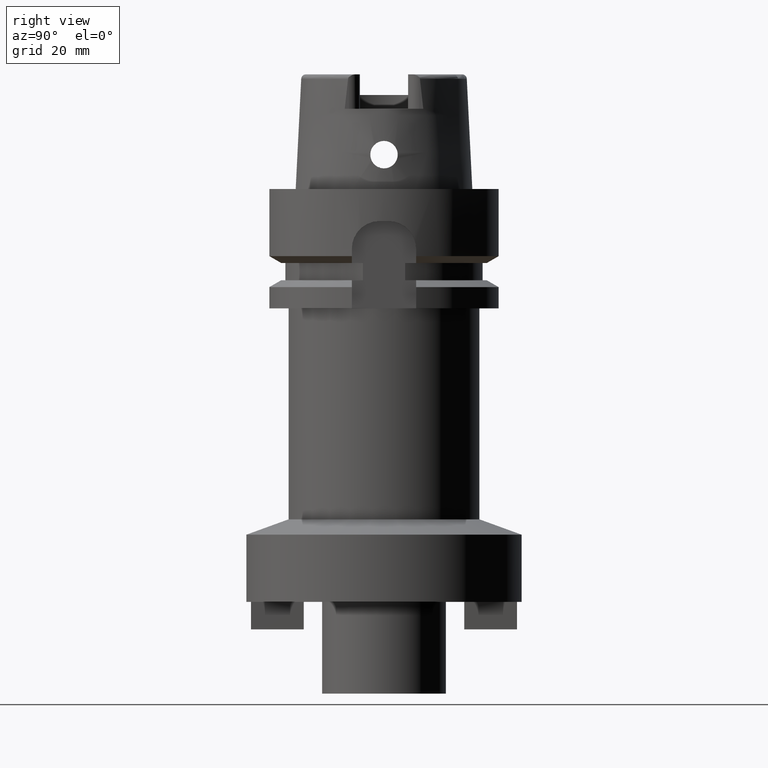
[diagram: clean part render]
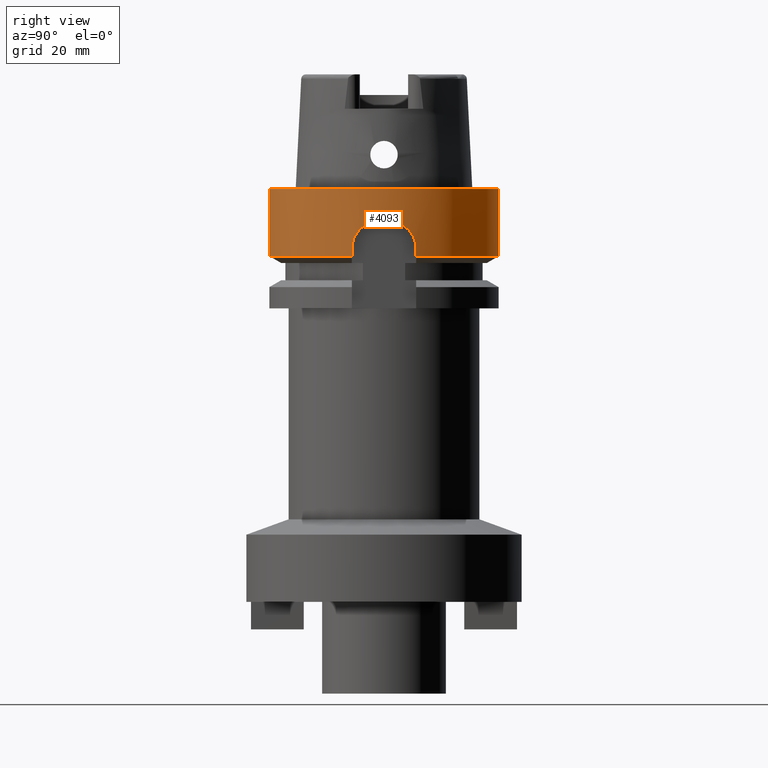
[diagram: same view with one face highlighted and labeled with its STEP entity id]
A machine part, right view. The second image highlights one B-rep face of the part: STEP entity #4093.
In plain terms, the highlighted cylindrical surface (partial cylindrical patch) has radius 25 mm, axis along (0, 0, 1).
Its self-contained STEP definition (entity closure, byte-faithful):
#1716=CARTESIAN_POINT('',(2.399999968318E1,7.000001086231E0,-1.462249198985E1));
#1721=CARTESIAN_POINT('',(0.E0,0.E0,-1.462250092524E1));
#1722=DIRECTION('',(0.E0,0.E0,1.E0));
#1723=DIRECTION('',(9.6E-1,2.8E-1,0.E0));
#1724=AXIS2_PLACEMENT_3D('',#1721,#1722,#1723);
#1751=CARTESIAN_POINT('',(2.497999199359E1,-1.E0,-7.E0));
#1752=CARTESIAN_POINT('',(2.496218688693E1,-1.444771421805E0,-7.E0));
#1753=CARTESIAN_POINT('',(2.490399631038E1,-2.316913423191E0,
-7.095569607612E0));
#1754=CARTESIAN_POINT('',(2.474857994367E1,-3.610001032791E0,
-7.539949387154E0));
#1755=CARTESIAN_POINT('',(2.454978917241E1,-4.764235887453E0,
-8.262433584043E0));
#1756=CARTESIAN_POINT('',(2.434030863360E1,-5.727275277232E0,
-9.223452138812E0));
#1757=CARTESIAN_POINT('',(2.415563644772E1,-6.451885219719E0,
-1.037215742016E1));
#1758=CARTESIAN_POINT('',(2.402849788507E1,-6.903546913145E0,
-1.167534256863E1));
#1759=CARTESIAN_POINT('',(2.4E1,-7.E0,-1.255186660542E1));
#1760=CARTESIAN_POINT('',(2.4E1,-7.E0,-1.3E1));
#1765=DIRECTION('',(3.905213642416E-8,1.338921764463E-7,-1.E0));
#1766=VECTOR('',#1765,1.622502712235E0);
#1767=CARTESIAN_POINT('',(2.4E1,-7.E0,-1.3E1));
#1768=LINE('',#1767,#1766);
#1772=DIRECTION('',(0.E0,2.721175632404E-14,-1.E0));
#1773=VECTOR('',#1772,1.462250092524E1);
#1774=CARTESIAN_POINT('',(0.E0,2.5E1,0.E0));
#1775=LINE('',#1774,#1773);
#1779=DIRECTION('',(1.952656226905E-7,-6.694828396199E-7,9.999999999998E-1));
#1780=VECTOR('',#1779,1.622491989846E0);
#1781=CARTESIAN_POINT('',(2.399999968318E1,7.000001086231E0,-1.462249198985E1));
#1782=LINE('',#1781,#1780);
#1786=CARTESIAN_POINT('',(2.4E1,7.E0,-1.3E1));
#1787=CARTESIAN_POINT('',(2.4E1,7.E0,-1.255860797765E1));
#1788=CARTESIAN_POINT('',(2.402767624049E1,6.906288431368E0,-1.169349859800E1));
#1789=CARTESIAN_POINT('',(2.415178540201E1,6.465884528113E0,-1.040363672789E1));
#1790=CARTESIAN_POINT('',(2.433397387889E1,5.753535525163E0,-9.257229626059E0));
#1791=CARTESIAN_POINT('',(2.454264058198E1,4.800364307475E0,-8.291437927154E0));
#1792=CARTESIAN_POINT('',(2.474300290979E1,3.648542412875E0,-7.557730015792E0));
#1793=CARTESIAN_POINT('',(2.490181451194E1,2.343736498135E0,-7.100079258298E0));
#1794=CARTESIAN_POINT('',(2.496176981994E1,1.455189752057E0,-7.E0));
#1795=CARTESIAN_POINT('',(2.497999199359E1,1.E0,-7.E0));
#1814=CARTESIAN_POINT('',(0.E0,0.E0,-7.E0));
#1815=DIRECTION('',(0.E0,0.E0,1.E0));
#1816=DIRECTION('',(9.991996797437E-1,-4.E-2,0.E0));
#1817=AXIS2_PLACEMENT_3D('',#1814,#1815,#1816);
#1917=DIRECTION('',(0.E0,-2.721175632404E-14,-1.E0));
#1918=VECTOR('',#1917,1.462250092524E1);
#1919=CARTESIAN_POINT('',(0.E0,-2.5E1,0.E0));
#1920=LINE('',#1919,#1918);
#1972=CARTESIAN_POINT('',(0.E0,0.E0,0.E0));
#1973=DIRECTION('',(0.E0,0.E0,-1.E0));
#1974=DIRECTION('',(0.E0,1.E0,0.E0));
#1975=AXIS2_PLACEMENT_3D('',#1972,#1973,#1974);
#2014=CARTESIAN_POINT('',(0.E0,0.E0,-1.462250092524E1));
#2015=DIRECTION('',(0.E0,0.E0,1.E0));
#2016=DIRECTION('',(0.E0,-1.E0,0.E0));
#2017=AXIS2_PLACEMENT_3D('',#2014,#2015,#2016);
#2022=CARTESIAN_POINT('',(2.400000006336E1,-6.999999782760E0,
-1.462250271223E1));
#2751=VERTEX_POINT('',#2022);
#2752=CARTESIAN_POINT('',(2.4E1,-7.E0,-1.3E1));
#2753=VERTEX_POINT('',#2752);
#2762=CARTESIAN_POINT('',(0.E0,-2.5E1,-1.462250092524E1));
#2763=VERTEX_POINT('',#2762);
#2764=VERTEX_POINT('',#1716);
#2765=CARTESIAN_POINT('',(0.E0,2.5E1,-1.462250092524E1));
#2766=VERTEX_POINT('',#2765);
#2768=CARTESIAN_POINT('',(0.E0,2.5E1,0.E0));
#2769=VERTEX_POINT('',#2768);
#2770=CARTESIAN_POINT('',(0.E0,-2.5E1,0.E0));
#2771=VERTEX_POINT('',#2770);
#2774=VERTEX_POINT('',#1751);
#2775=CARTESIAN_POINT('',(2.4E1,7.E0,-1.3E1));
#2776=VERTEX_POINT('',#2775);
#2777=VERTEX_POINT('',#1795);
#4069=CARTESIAN_POINT('',(0.E0,0.E0,-1.1675E2));
#4070=DIRECTION('',(0.E0,0.E0,1.E0));
#4071=DIRECTION('',(0.E0,1.E0,0.E0));
#4072=AXIS2_PLACEMENT_3D('',#4069,#4070,#4071);
#4073=CYLINDRICAL_SURFACE('',#4072,2.5E1);
#4075=ORIENTED_EDGE('',*,*,#4074,.T.);
#4077=ORIENTED_EDGE('',*,*,#4076,.T.);
#4079=ORIENTED_EDGE('',*,*,#4078,.F.);
#4081=ORIENTED_EDGE('',*,*,#4080,.F.);
#4083=ORIENTED_EDGE('',*,*,#4082,.F.);
#4085=ORIENTED_EDGE('',*,*,#4084,.T.);
#4086=ORIENTED_EDGE('',*,*,#4033,.F.);
#4087=ORIENTED_EDGE('',*,*,#4049,.T.);
#4088=ORIENTED_EDGE('',*,*,#4060,.T.);
#4090=ORIENTED_EDGE('',*,*,#4089,.F.);
#4091=EDGE_LOOP('',(#4075,#4077,#4079,#4081,#4083,#4085,#4086,#4087,#4088,
#4090));
#4092=FACE_OUTER_BOUND('',#4091,.F.);
#1725=CIRCLE('',#1724,2.5E1);
#1761=B_SPLINE_CURVE_WITH_KNOTS('',3,(#1751,#1752,#1753,#1754,#1755,#1756,#1757,
#1758,#1759,#1760),.UNSPECIFIED.,.F.,.F.,(4,1,1,1,1,1,1,4),(0.E0,
1.428571428571E-1,2.857142857143E-1,4.285714285714E-1,5.714285714286E-1,
7.142857142857E-1,8.571428571429E-1,1.E0),.UNSPECIFIED.);
#1796=B_SPLINE_CURVE_WITH_KNOTS('',3,(#1786,#1787,#1788,#1789,#1790,#1791,#1792,
#1793,#1794,#1795),.UNSPECIFIED.,.F.,.F.,(4,1,1,1,1,1,1,4),(0.E0,
1.428571428571E-1,2.857142857143E-1,4.285714285714E-1,5.714285714286E-1,
7.142857142857E-1,8.571428571429E-1,1.E0),.UNSPECIFIED.);
#1818=CIRCLE('',#1817,2.5E1);
#1976=CIRCLE('',#1975,2.5E1);
#2018=CIRCLE('',#2017,2.5E1);
#4033=EDGE_CURVE('',#2764,#2766,#1725,.T.);
#4049=EDGE_CURVE('',#2764,#2776,#1782,.T.);
#4060=EDGE_CURVE('',#2776,#2777,#1796,.T.);
#4074=EDGE_CURVE('',#2774,#2753,#1761,.T.);
#4076=EDGE_CURVE('',#2753,#2751,#1768,.T.);
#4078=EDGE_CURVE('',#2763,#2751,#2018,.T.);
#4080=EDGE_CURVE('',#2771,#2763,#1920,.T.);
#4082=EDGE_CURVE('',#2769,#2771,#1976,.T.);
#4084=EDGE_CURVE('',#2769,#2766,#1775,.T.);
#4089=EDGE_CURVE('',#2774,#2777,#1818,.T.);
#4093=ADVANCED_FACE('',(#4092),#4073,.T.);